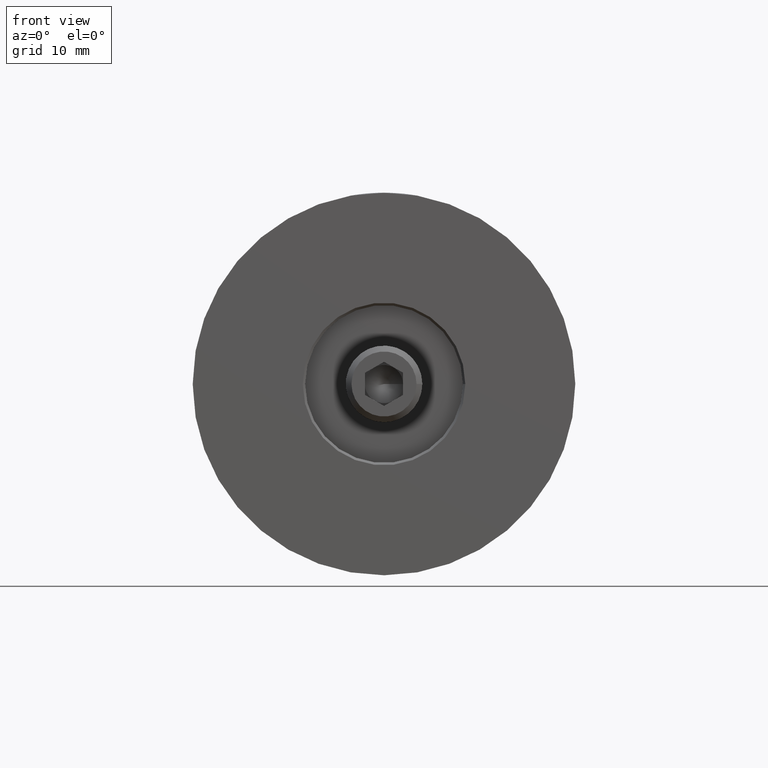
[diagram: clean part render]
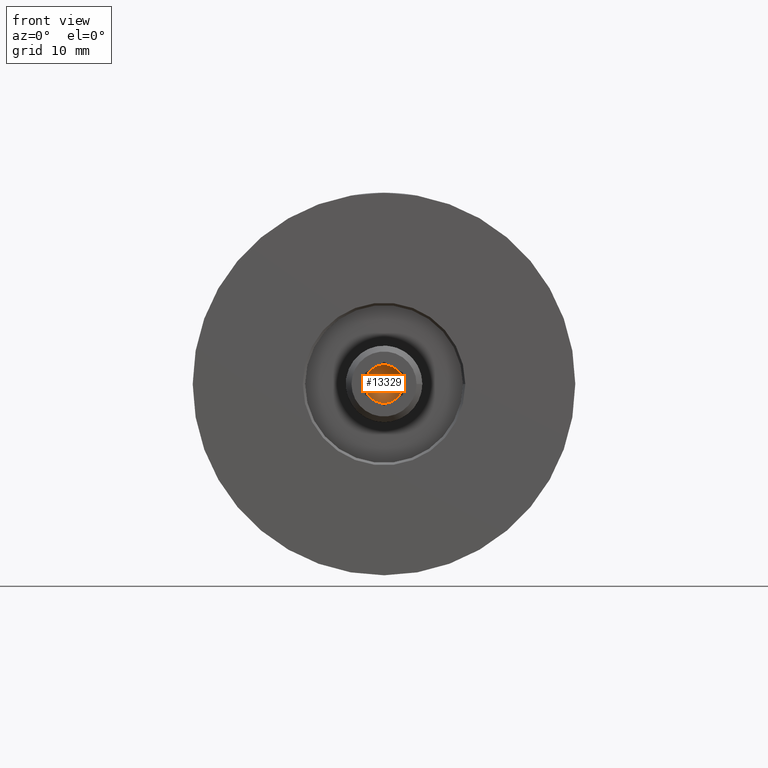
[diagram: same view with one face highlighted and labeled with its STEP entity id]
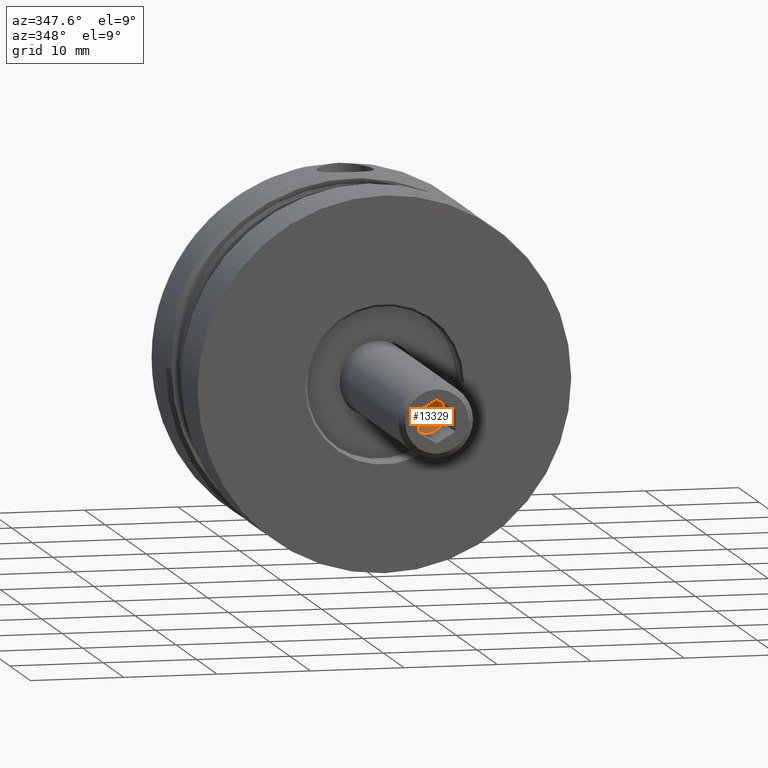
[diagram: same view with one face highlighted and labeled with its STEP entity id]
A machine part, front view. The second image highlights one B-rep face of the part: STEP entity #13329.
A second angle (auxiliary view) of the same face is appended — the face is thin or edge-on in the first view.
In plain terms, the highlighted conical surface has half-angle 59 deg.
Its self-contained STEP definition (entity closure, byte-faithful):
#99 = CARTESIAN_POINT ( 'NONE',  ( 40.00000000000000000, -1.732050807568876305, -1.000000000000003553 ) ) ;
#308 = DIRECTION ( 'NONE',  ( 1.000000000000000000, 0.000000000000000000, 0.000000000000000000 ) ) ;
#675 = CIRCLE ( 'NONE', #13879, 1.999999999999996225 ) ;
#1203 = AXIS2_PLACEMENT_3D ( 'NONE', #6755, #6708, #5541 ) ;
#1388 = CIRCLE ( 'NONE', #14293, 1.999999999999996225 ) ;
#1592 = EDGE_CURVE ( 'NONE', #9536, #1954, #13221, .T. ) ;
#1772 = EDGE_CURVE ( 'NONE', #2996, #12036, #10860, .T. ) ;
#1782 = EDGE_LOOP ( 'NONE', ( #2863, #10118, #10360, #2059, #10760, #8693 ) ) ;
#1954 = VERTEX_POINT ( 'NONE', #3989 ) ;
#2059 = ORIENTED_EDGE ( 'NONE', *, *, #1592, .T. ) ;
#2706 = VERTEX_POINT ( 'NONE', #10783 ) ;
#2863 = ORIENTED_EDGE ( 'NONE', *, *, #14358, .T. ) ;
#2996 = VERTEX_POINT ( 'NONE', #99 ) ;
#3320 = AXIS2_PLACEMENT_3D ( 'NONE', #3688, #3586, #9297 ) ;
#3586 = DIRECTION ( 'NONE',  ( 1.000000000000000000, 0.000000000000000000, 0.000000000000000000 ) ) ;
#3643 = AXIS2_PLACEMENT_3D ( 'NONE', #7293, #308, #13040 ) ;
#3688 = CARTESIAN_POINT ( 'NONE',  ( 40.00000000000000000, 0.000000000000000000, -4.939686807370778854E-15 ) ) ;
#3989 = CARTESIAN_POINT ( 'NONE',  ( 40.00000000000000000, -1.732050807568874085, 0.9999999999999931166 ) ) ;
#4341 = EDGE_CURVE ( 'NONE', #2706, #14923, #5528, .T. ) ;
#4484 = DIRECTION ( 'NONE',  ( 1.000000000000000000, 0.000000000000000000, 0.000000000000000000 ) ) ;
#4917 = CARTESIAN_POINT ( 'NONE',  ( 40.00000000000000000, 0.000000000000000000, -4.939686807370778854E-15 ) ) ;
#4958 = DIRECTION ( 'NONE',  ( 1.000000000000000000, 0.000000000000000000, 0.000000000000000000 ) ) ;
#5146 = AXIS2_PLACEMENT_3D ( 'NONE', #14813, #4484, #11382 ) ;
#5365 = FACE_OUTER_BOUND ( 'NONE', #1782, .T. ) ;
#5528 = CIRCLE ( 'NONE', #1203, 1.999999999999996225 ) ;
#5541 = DIRECTION ( 'NONE',  ( 0.000000000000000000, 0.000000000000000000, -1.000000000000000000 ) ) ;
#5543 = DIRECTION ( 'NONE',  ( 0.000000000000000000, 0.000000000000000000, -1.000000000000000000 ) ) ;
#6420 = DIRECTION ( 'NONE',  ( 0.000000000000000000, 0.000000000000000000, -1.000000000000000000 ) ) ;
#6632 = EDGE_CURVE ( 'NONE', #1954, #2996, #9034, .T. ) ;
#6708 = DIRECTION ( 'NONE',  ( 1.000000000000000000, 0.000000000000000000, 0.000000000000000000 ) ) ;
#6755 = CARTESIAN_POINT ( 'NONE',  ( 40.00000000000000000, 0.000000000000000000, -4.939686807370778854E-15 ) ) ;
#7293 = CARTESIAN_POINT ( 'NONE',  ( 40.00000000000000000, 0.000000000000000000, -4.939686807370778854E-15 ) ) ;
#8613 = CARTESIAN_POINT ( 'NONE',  ( 40.00000000000000000, 0.000000000000000000, -4.531193156845206004E-15 ) ) ;
#8693 = ORIENTED_EDGE ( 'NONE', *, *, #1772, .T. ) ;
#9015 = DIRECTION ( 'NONE',  ( 1.000000000000000000, -0.000000000000000000, -1.227238738618128420E-16 ) ) ;
#9034 = CIRCLE ( 'NONE', #3643, 1.999999999999996225 ) ;
#9297 = DIRECTION ( 'NONE',  ( 0.000000000000000000, 0.000000000000000000, -1.000000000000000000 ) ) ;
#9522 = DIRECTION ( 'NONE',  ( 0.000000000000000000, 0.000000000000000000, -1.000000000000000000 ) ) ;
#9536 = VERTEX_POINT ( 'NONE', #12906 ) ;
#9782 = DIRECTION ( 'NONE',  ( 1.000000000000000000, -0.000000000000000000, -1.227238738618128420E-16 ) ) ;
#10118 = ORIENTED_EDGE ( 'NONE', *, *, #4341, .T. ) ;
#10204 = CARTESIAN_POINT ( 'NONE',  ( 40.00000000000000000, 0.000000000000000000, -4.531193156845206004E-15 ) ) ;
#10360 = ORIENTED_EDGE ( 'NONE', *, *, #12477, .T. ) ;
#10760 = ORIENTED_EDGE ( 'NONE', *, *, #6632, .T. ) ;
#10783 = CARTESIAN_POINT ( 'NONE',  ( 40.00000000000000000, 1.732050807568873863, -1.000000000000002887 ) ) ;
#10860 = CIRCLE ( 'NONE', #3320, 1.999999999999996225 ) ;
#10958 = CARTESIAN_POINT ( 'NONE',  ( 40.00000000000000000, -3.755786496842887224E-16, -2.000000000000000444 ) ) ;
#11382 = DIRECTION ( 'NONE',  ( 0.000000000000000000, 0.000000000000000000, -1.000000000000000000 ) ) ;
#12036 = VERTEX_POINT ( 'NONE', #10958 ) ;
#12161 = CARTESIAN_POINT ( 'NONE',  ( 40.00000000000000000, 1.732050807568874085, 0.9999999999999928946 ) ) ;
#12477 = EDGE_CURVE ( 'NONE', #14923, #9536, #675, .T. ) ;
#12906 = CARTESIAN_POINT ( 'NONE',  ( 40.00000000000000000, 0.000000000000000000, 1.999999999999991784 ) ) ;
#13040 = DIRECTION ( 'NONE',  ( 0.000000000000000000, 0.000000000000000000, -1.000000000000000000 ) ) ;
#13221 = CIRCLE ( 'NONE', #5146, 1.999999999999996225 ) ;
#13329 = ADVANCED_FACE ( 'NONE', ( #5365 ), #14783, .F. ) ;
#13879 = AXIS2_PLACEMENT_3D ( 'NONE', #4917, #4958, #9522 ) ;
#14293 = AXIS2_PLACEMENT_3D ( 'NONE', #8613, #9782, #6420 ) ;
#14358 = EDGE_CURVE ( 'NONE', #12036, #2706, #1388, .T. ) ;
#14368 = AXIS2_PLACEMENT_3D ( 'NONE', #10204, #9015, #5543 ) ;
#14783 = CONICAL_SURFACE ( 'NONE', #14368, 1.999999999999996225, 1.029744258676651425 ) ;
#14813 = CARTESIAN_POINT ( 'NONE',  ( 40.00000000000000000, 0.000000000000000000, -4.939686807370778854E-15 ) ) ;
#14923 = VERTEX_POINT ( 'NONE', #12161 ) ;